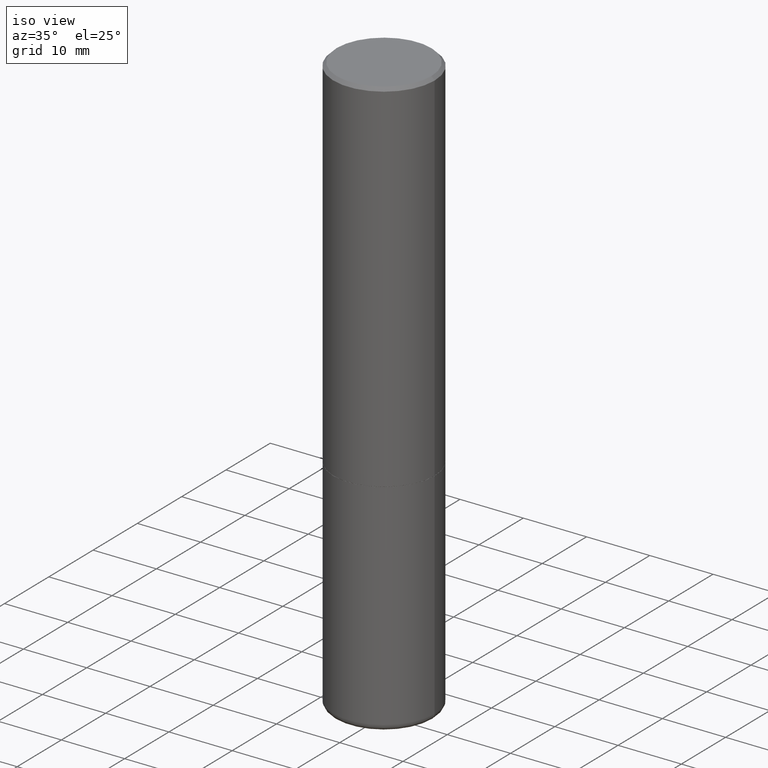
[diagram: clean part render]
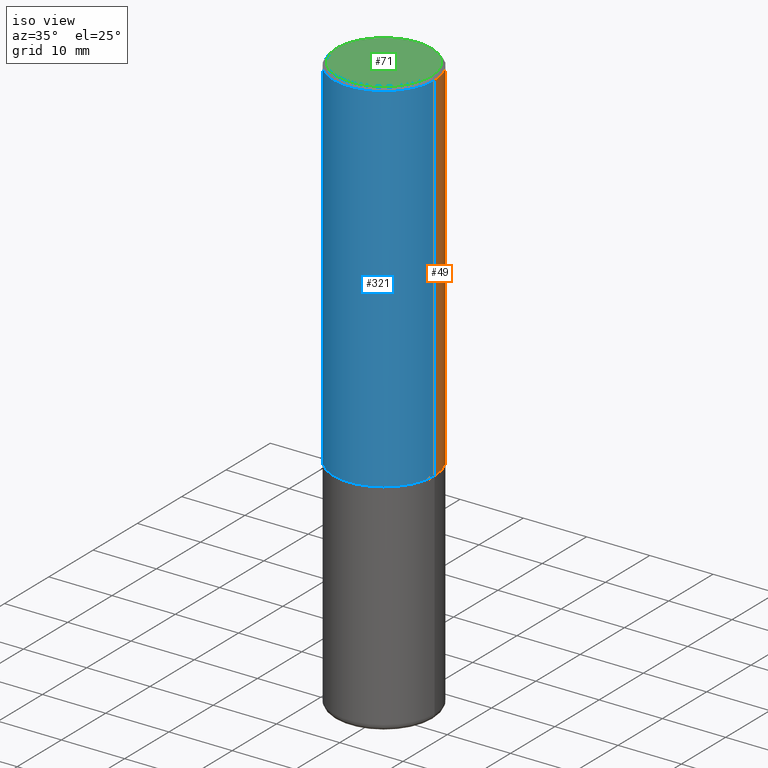
[diagram: same view with three faces highlighted in distinct colors, each labeled with its STEP entity id]
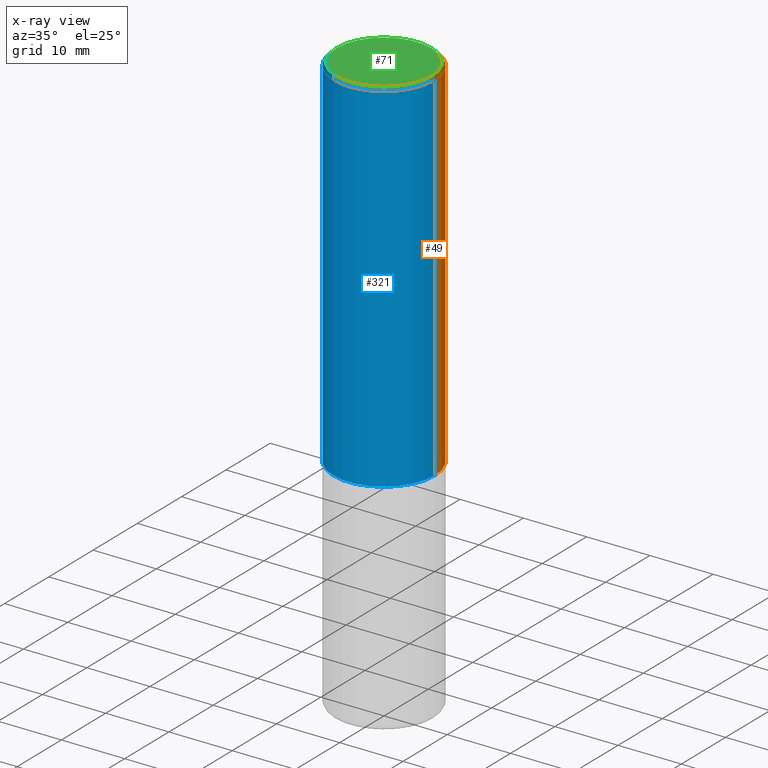
[diagram: x-ray of the same camera — body ghosted, the three highlighted faces saturated]
A machine part, iso view with three faces highlighted in distinct colors.
The next image is the same camera in x-ray (body ghosted, the three faces saturated) — at least one of them is partly hidden behind the body in this view.
Their STEP definitions:

[orange] entity #49 — the highlighted cylindrical surface (partial cylindrical patch) has radius 7.9997 mm, axis along (-0, 0, 1).
#6 = VERTEX_POINT ( 'NONE', #215 ) ;
#17 = LINE ( 'NONE', #95, #322 ) ;
#40 = EDGE_CURVE ( 'NONE', #326, #351, #125, .T. ) ;
#49 = ADVANCED_FACE ( 'NONE', ( #273 ), #93, .T. ) ;
#57 = VERTEX_POINT ( 'NONE', #185 ) ;
#67 = AXIS2_PLACEMENT_3D ( 'NONE', #96, #375, #341 ) ;
#73 = EDGE_CURVE ( 'NONE', #6, #351, #259, .T. ) ;
#93 = CYLINDRICAL_SURFACE ( 'NONE', #67, 0.3149500000000001743 ) ;
#95 = CARTESIAN_POINT ( 'NONE',  ( 0.3149500000000001743, -2.199284095337290660E-15, 1.535751875536930690E-29 ) ) ;
#96 = CARTESIAN_POINT ( 'NONE',  ( 0.000000000000000000, 0.000000000000000000, 0.000000000000000000 ) ) ;
#98 = DIRECTION ( 'NONE',  ( 1.000000000000000000, -6.982962677686267499E-15, 0.000000000000000000 ) ) ;
#125 = CIRCLE ( 'NONE', #374, 0.3149500000000000077 ) ;
#152 = ORIENTED_EDGE ( 'NONE', *, *, #73, .T. ) ;
#158 = VECTOR ( 'NONE', #373, 39.37007874015748143 ) ;
#175 = CIRCLE ( 'NONE', #288, 0.3149500000000002853 ) ;
#176 = EDGE_LOOP ( 'NONE', ( #277, #152, #279, #349 ) ) ;
#185 = CARTESIAN_POINT ( 'NONE',  ( 0.3149500000000002853, -1.003067673836246727E-14, -2.242999999999999883 ) ) ;
#191 = EDGE_CURVE ( 'NONE', #57, #326, #17, .T. ) ;
#206 = CARTESIAN_POINT ( 'NONE',  ( 0.3149500000000000077, -2.230543471175007450E-15, -0.02000000000000006981 ) ) ;
#212 = EDGE_CURVE ( 'NONE', #57, #6, #175, .T. ) ;
#215 = CARTESIAN_POINT ( 'NONE',  ( -0.3149500000000002853, -1.712756788624580222E-15, -2.242999999999999883 ) ) ;
#221 = DIRECTION ( 'NONE',  ( 1.000000000000000000, -6.982962677686266711E-15, 0.000000000000000000 ) ) ;
#252 = CARTESIAN_POINT ( 'NONE',  ( 4.890937612370289799E-31, -6.982962677686315028E-17, -0.02000000000000006981 ) ) ;
#254 = CARTESIAN_POINT ( 'NONE',  ( 5.485186532273261485E-29, -7.831392643025175821E-15, -2.242999999999999883 ) ) ;
#259 = LINE ( 'NONE', #385, #158 ) ;
#273 = FACE_OUTER_BOUND ( 'NONE', #176, .T. ) ;
#277 = ORIENTED_EDGE ( 'NONE', *, *, #212, .T. ) ;
#279 = ORIENTED_EDGE ( 'NONE', *, *, #40, .F. ) ;
#288 = AXIS2_PLACEMENT_3D ( 'NONE', #254, #380, #98 ) ;
#311 = CARTESIAN_POINT ( 'NONE',  ( -0.3149500000000000077, 2.129454468560426573E-15, -0.02000000000000006981 ) ) ;
#322 = VECTOR ( 'NONE', #404, 39.37007874015748143 ) ;
#326 = VERTEX_POINT ( 'NONE', #206 ) ;
#341 = DIRECTION ( 'NONE',  ( 1.000000000000000000, -6.982962677686265922E-15, 4.876176775795935232E-29 ) ) ;
#349 = ORIENTED_EDGE ( 'NONE', *, *, #191, .F. ) ;
#351 = VERTEX_POINT ( 'NONE', #311 ) ;
#373 = DIRECTION ( 'NONE',  ( -2.445468806185136877E-29, 3.491481338843145188E-15, 1.000000000000000000 ) ) ;
#374 = AXIS2_PLACEMENT_3D ( 'NONE', #252, #378, #221 ) ;
#375 = DIRECTION ( 'NONE',  ( -2.445468806185136597E-29, 3.491481338843145583E-15, 1.000000000000000000 ) ) ;
#378 = DIRECTION ( 'NONE',  ( -2.445468806185136597E-29, 3.491481338843145583E-15, 1.000000000000000000 ) ) ;
#380 = DIRECTION ( 'NONE',  ( -2.445468806185136597E-29, 3.491481338843145583E-15, 1.000000000000000000 ) ) ;
#385 = CARTESIAN_POINT ( 'NONE',  ( -0.3149500000000001743, 2.237854346276436774E-15, -1.549218606675783237E-29 ) ) ;
#404 = DIRECTION ( 'NONE',  ( -2.445468806185136877E-29, 3.491481338843145188E-15, 1.000000000000000000 ) ) ;

[blue] entity #321 — the highlighted cylindrical surface (partial cylindrical patch) has radius 7.9997 mm, axis along (-0, 0, 1).
#6 = VERTEX_POINT ( 'NONE', #215 ) ;
#12 = ORIENTED_EDGE ( 'NONE', *, *, #203, .F. ) ;
#17 = LINE ( 'NONE', #95, #322 ) ;
#50 = FACE_OUTER_BOUND ( 'NONE', #154, .T. ) ;
#57 = VERTEX_POINT ( 'NONE', #185 ) ;
#66 = ORIENTED_EDGE ( 'NONE', *, *, #128, .T. ) ;
#68 = AXIS2_PLACEMENT_3D ( 'NONE', #183, #308, #160 ) ;
#73 = EDGE_CURVE ( 'NONE', #6, #351, #259, .T. ) ;
#89 = DIRECTION ( 'NONE',  ( -2.445468806185136597E-29, 3.491481338843145583E-15, 1.000000000000000000 ) ) ;
#95 = CARTESIAN_POINT ( 'NONE',  ( 0.3149500000000001743, -2.199284095337290660E-15, 1.535751875536930690E-29 ) ) ;
#110 = AXIS2_PLACEMENT_3D ( 'NONE', #173, #368, #150 ) ;
#111 = AXIS2_PLACEMENT_3D ( 'NONE', #348, #89, #270 ) ;
#128 = EDGE_CURVE ( 'NONE', #6, #57, #414, .T. ) ;
#147 = ORIENTED_EDGE ( 'NONE', *, *, #73, .F. ) ;
#150 = DIRECTION ( 'NONE',  ( 1.000000000000000000, -6.982962677686265922E-15, 4.876176775795935232E-29 ) ) ;
#154 = EDGE_LOOP ( 'NONE', ( #147, #66, #164, #12 ) ) ;
#158 = VECTOR ( 'NONE', #373, 39.37007874015748143 ) ;
#160 = DIRECTION ( 'NONE',  ( 1.000000000000000000, -6.982962677686266711E-15, 0.000000000000000000 ) ) ;
#164 = ORIENTED_EDGE ( 'NONE', *, *, #191, .T. ) ;
#173 = CARTESIAN_POINT ( 'NONE',  ( 0.000000000000000000, 0.000000000000000000, 0.000000000000000000 ) ) ;
#183 = CARTESIAN_POINT ( 'NONE',  ( 4.890937612370289799E-31, -6.982962677686315028E-17, -0.02000000000000006981 ) ) ;
#185 = CARTESIAN_POINT ( 'NONE',  ( 0.3149500000000002853, -1.003067673836246727E-14, -2.242999999999999883 ) ) ;
#191 = EDGE_CURVE ( 'NONE', #57, #326, #17, .T. ) ;
#203 = EDGE_CURVE ( 'NONE', #351, #326, #382, .T. ) ;
#206 = CARTESIAN_POINT ( 'NONE',  ( 0.3149500000000000077, -2.230543471175007450E-15, -0.02000000000000006981 ) ) ;
#215 = CARTESIAN_POINT ( 'NONE',  ( -0.3149500000000002853, -1.712756788624580222E-15, -2.242999999999999883 ) ) ;
#259 = LINE ( 'NONE', #385, #158 ) ;
#270 = DIRECTION ( 'NONE',  ( 1.000000000000000000, -6.982962677686267499E-15, 0.000000000000000000 ) ) ;
#308 = DIRECTION ( 'NONE',  ( -2.445468806185136597E-29, 3.491481338843145583E-15, 1.000000000000000000 ) ) ;
#311 = CARTESIAN_POINT ( 'NONE',  ( -0.3149500000000000077, 2.129454468560426573E-15, -0.02000000000000006981 ) ) ;
#321 = ADVANCED_FACE ( 'NONE', ( #50 ), #328, .T. ) ;
#322 = VECTOR ( 'NONE', #404, 39.37007874015748143 ) ;
#326 = VERTEX_POINT ( 'NONE', #206 ) ;
#328 = CYLINDRICAL_SURFACE ( 'NONE', #110, 0.3149500000000001743 ) ;
#348 = CARTESIAN_POINT ( 'NONE',  ( 5.485186532273261485E-29, -7.831392643025175821E-15, -2.242999999999999883 ) ) ;
#351 = VERTEX_POINT ( 'NONE', #311 ) ;
#368 = DIRECTION ( 'NONE',  ( -2.445468806185136597E-29, 3.491481338843145583E-15, 1.000000000000000000 ) ) ;
#373 = DIRECTION ( 'NONE',  ( -2.445468806185136877E-29, 3.491481338843145188E-15, 1.000000000000000000 ) ) ;
#382 = CIRCLE ( 'NONE', #68, 0.3149500000000000077 ) ;
#385 = CARTESIAN_POINT ( 'NONE',  ( -0.3149500000000001743, 2.237854346276436774E-15, -1.549218606675783237E-29 ) ) ;
#404 = DIRECTION ( 'NONE',  ( -2.445468806185136877E-29, 3.491481338843145188E-15, 1.000000000000000000 ) ) ;
#414 = CIRCLE ( 'NONE', #111, 0.3149500000000002853 ) ;

[green] entity #71 — the highlighted planar face has unit normal (0, -0, -1).
#18 = DIRECTION ( 'NONE',  ( 1.000000000000000000, -6.982962677686267499E-15, 4.874125435057325556E-29 ) ) ;
#48 = VERTEX_POINT ( 'NONE', #64 ) ;
#52 = AXIS2_PLACEMENT_3D ( 'NONE', #272, #163, #18 ) ;
#59 = CARTESIAN_POINT ( 'NONE',  ( 0.2949499999999997679, -2.127023677808859286E-15, 2.219626494852360421E-16 ) ) ;
#64 = CARTESIAN_POINT ( 'NONE',  ( -0.2949499999999997679, 2.094539655171995318E-15, 2.219626494852068542E-16 ) ) ;
#71 = ADVANCED_FACE ( 'NONE', ( #310 ), #415, .F. ) ;
#77 = EDGE_LOOP ( 'NONE', ( #144, #211 ) ) ;
#103 = CARTESIAN_POINT ( 'NONE',  ( 2.059624841783562486E-15, 0.2949499999999997679, -9.188310961491742905E-16 ) ) ;
#108 = EDGE_CURVE ( 'NONE', #201, #48, #177, .T. ) ;
#126 = DIRECTION ( 'NONE',  ( -2.445468806185136597E-29, 3.491481338843145583E-15, 1.000000000000000000 ) ) ;
#136 = DIRECTION ( 'NONE',  ( -1.000000000000000000, 6.982962677686265922E-15, -4.876176775795935793E-29 ) ) ;
#144 = ORIENTED_EDGE ( 'NONE', *, *, #384, .T. ) ;
#157 = CIRCLE ( 'NONE', #334, 0.2949499999999997679 ) ;
#162 = CARTESIAN_POINT ( 'NONE',  ( -5.428027354543142984E-45, 7.749784485978325769E-31, 2.219626494852213988E-16 ) ) ;
#163 = DIRECTION ( 'NONE',  ( -2.445468806185136597E-29, 3.491481338843145583E-15, 1.000000000000000000 ) ) ;
#177 = CIRCLE ( 'NONE', #52, 0.2949499999999997679 ) ;
#201 = VERTEX_POINT ( 'NONE', #59 ) ;
#211 = ORIENTED_EDGE ( 'NONE', *, *, #108, .T. ) ;
#222 = DIRECTION ( 'NONE',  ( 2.438088387897960049E-29, -3.491481338843145188E-15, -1.000000000000000000 ) ) ;
#272 = CARTESIAN_POINT ( 'NONE',  ( -5.428027354543142984E-45, 7.749784485978325769E-31, 2.219626494852213988E-16 ) ) ;
#280 = DIRECTION ( 'NONE',  ( 1.000000000000000000, -6.982962677686267499E-15, 4.874125435057325556E-29 ) ) ;
#310 = FACE_OUTER_BOUND ( 'NONE', #77, .T. ) ;
#334 = AXIS2_PLACEMENT_3D ( 'NONE', #162, #126, #280 ) ;
#337 = AXIS2_PLACEMENT_3D ( 'NONE', #103, #222, #136 ) ;
#384 = EDGE_CURVE ( 'NONE', #48, #201, #157, .T. ) ;
#415 = PLANE ( 'NONE',  #337 ) ;